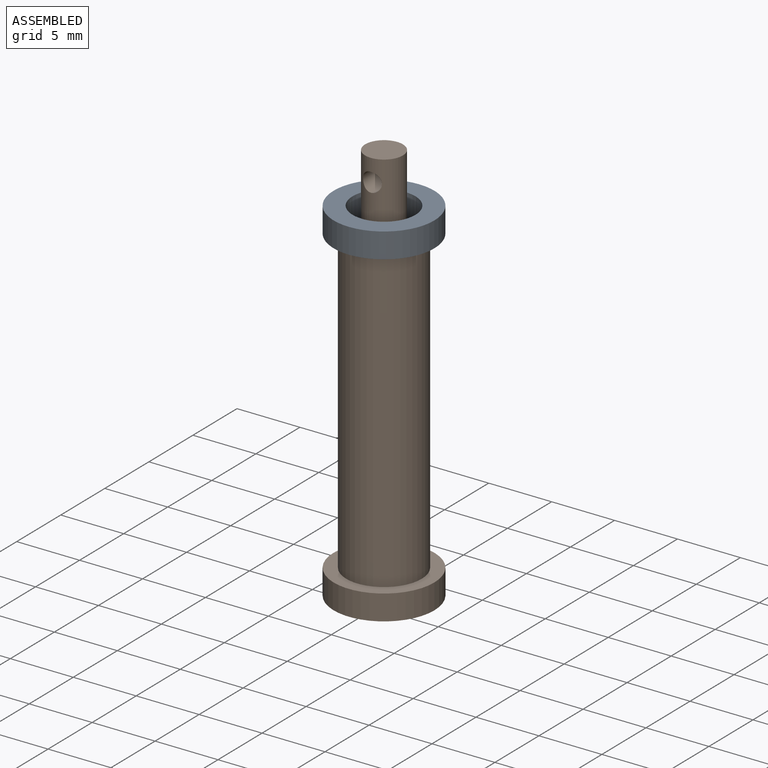
[diagram: assembled view]
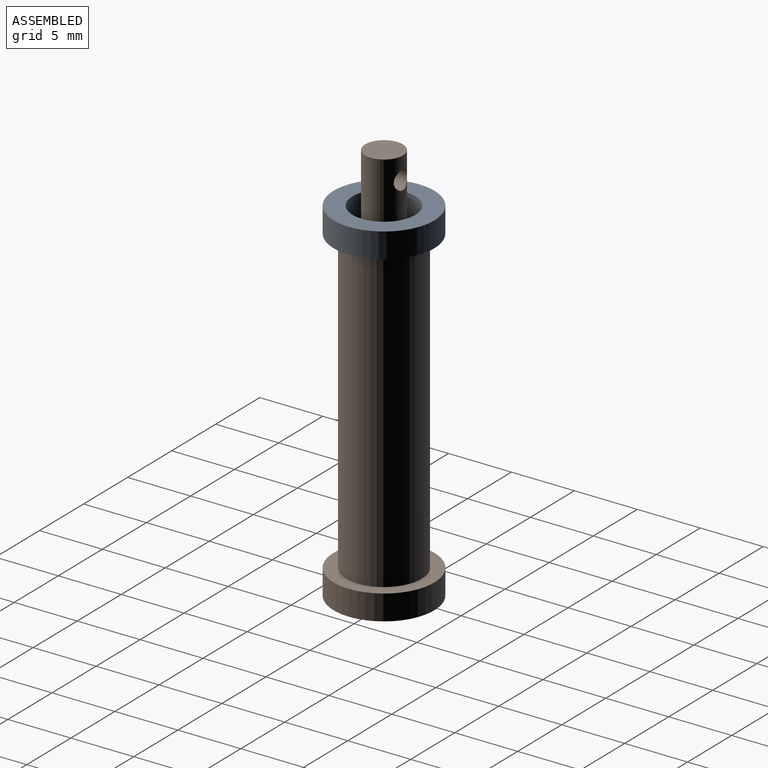
[diagram: assembled view, second angle]
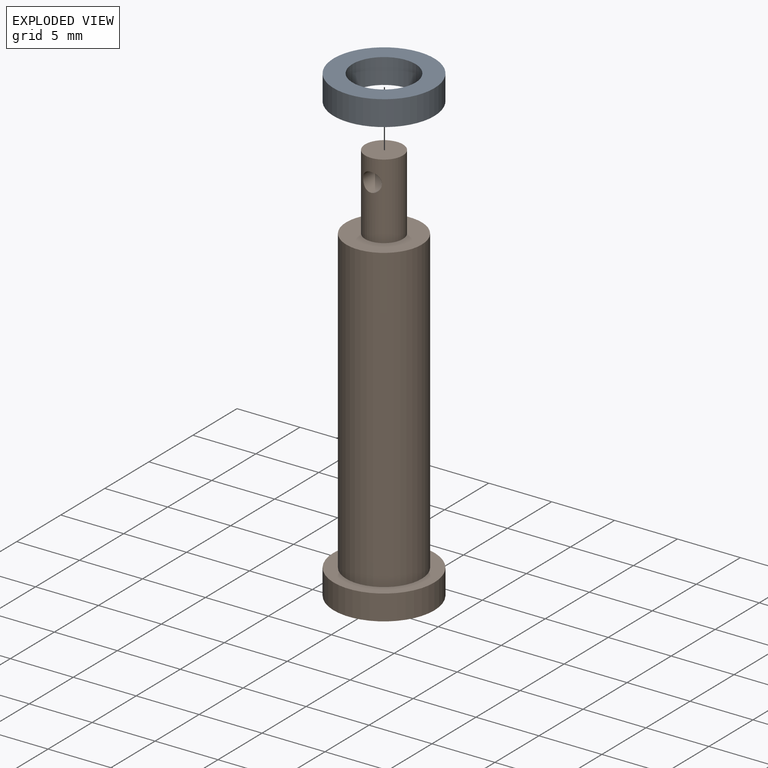
[diagram: exploded view]
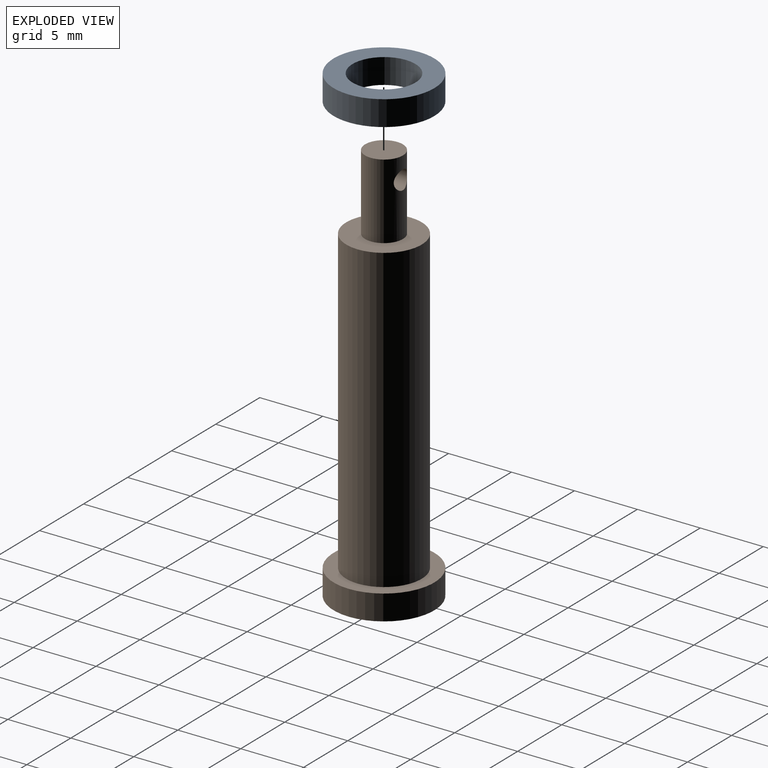
[diagram: exploded view, second angle]
ASSEMBLY  parts=2 mates=2
PART A: 4 faces, bbox 8x8x2 mm
  f0: cylinder r=2.5mm len=5mm, axis (0,0,-1), area 31.4mm2, adj f2,f3
  f1: cylinder r=4mm len=8mm, axis (0,0,-1), area 50.3mm2, adj f2,f3
  f2: plane 8x8mm, normal (0,0,1), area 30.6mm2, adj f0,f1
  f3: plane 8x8mm, normal (0,0,-1), area 30.6mm2, adj f0,f1
PART B: 8 faces, bbox 8x8x32 mm
  f0: cylinder r=4mm len=8mm, axis (0,0,-1), area 50.3mm2, adj f1,f2
  f1: plane 8x8mm, normal (0,0,1), area 22mm2, adj f0,f3
  f2: plane 8x8mm, normal (0,0,-1), area 50.3mm2, adj f0
  f3: cylinder r=3mm len=24mm, axis (0,0,-1), area 452.4mm2, adj f1,f4
  f4: plane 6x6mm, normal (0,0,1), area 21.2mm2, adj f3,f5
  f5: cylinder r=1.5mm len=6mm, axis (0,0,-1), area 52.9mm2, adj f4,f6,f7
  f6: plane 3x3mm, normal (0,0,1), area 7.1mm2, adj f5
  f7: cylinder r=0.75mm len=3mm, axis (0,-1,0), area 13.2mm2, adj f5
PLACE A t=(3.74,-21.5,23.97)mm
PLACE B t=(3.74,-21.5,-2.03)mm
MATE cylindrical A.f0 <-> B.f0  axis (0,0,1) through (3.74,-21.5,25.97)mm
MATE planar B.f3 <-> A.f1  axis (0,0,1) through (3.74,-21.5,23.97)mm
